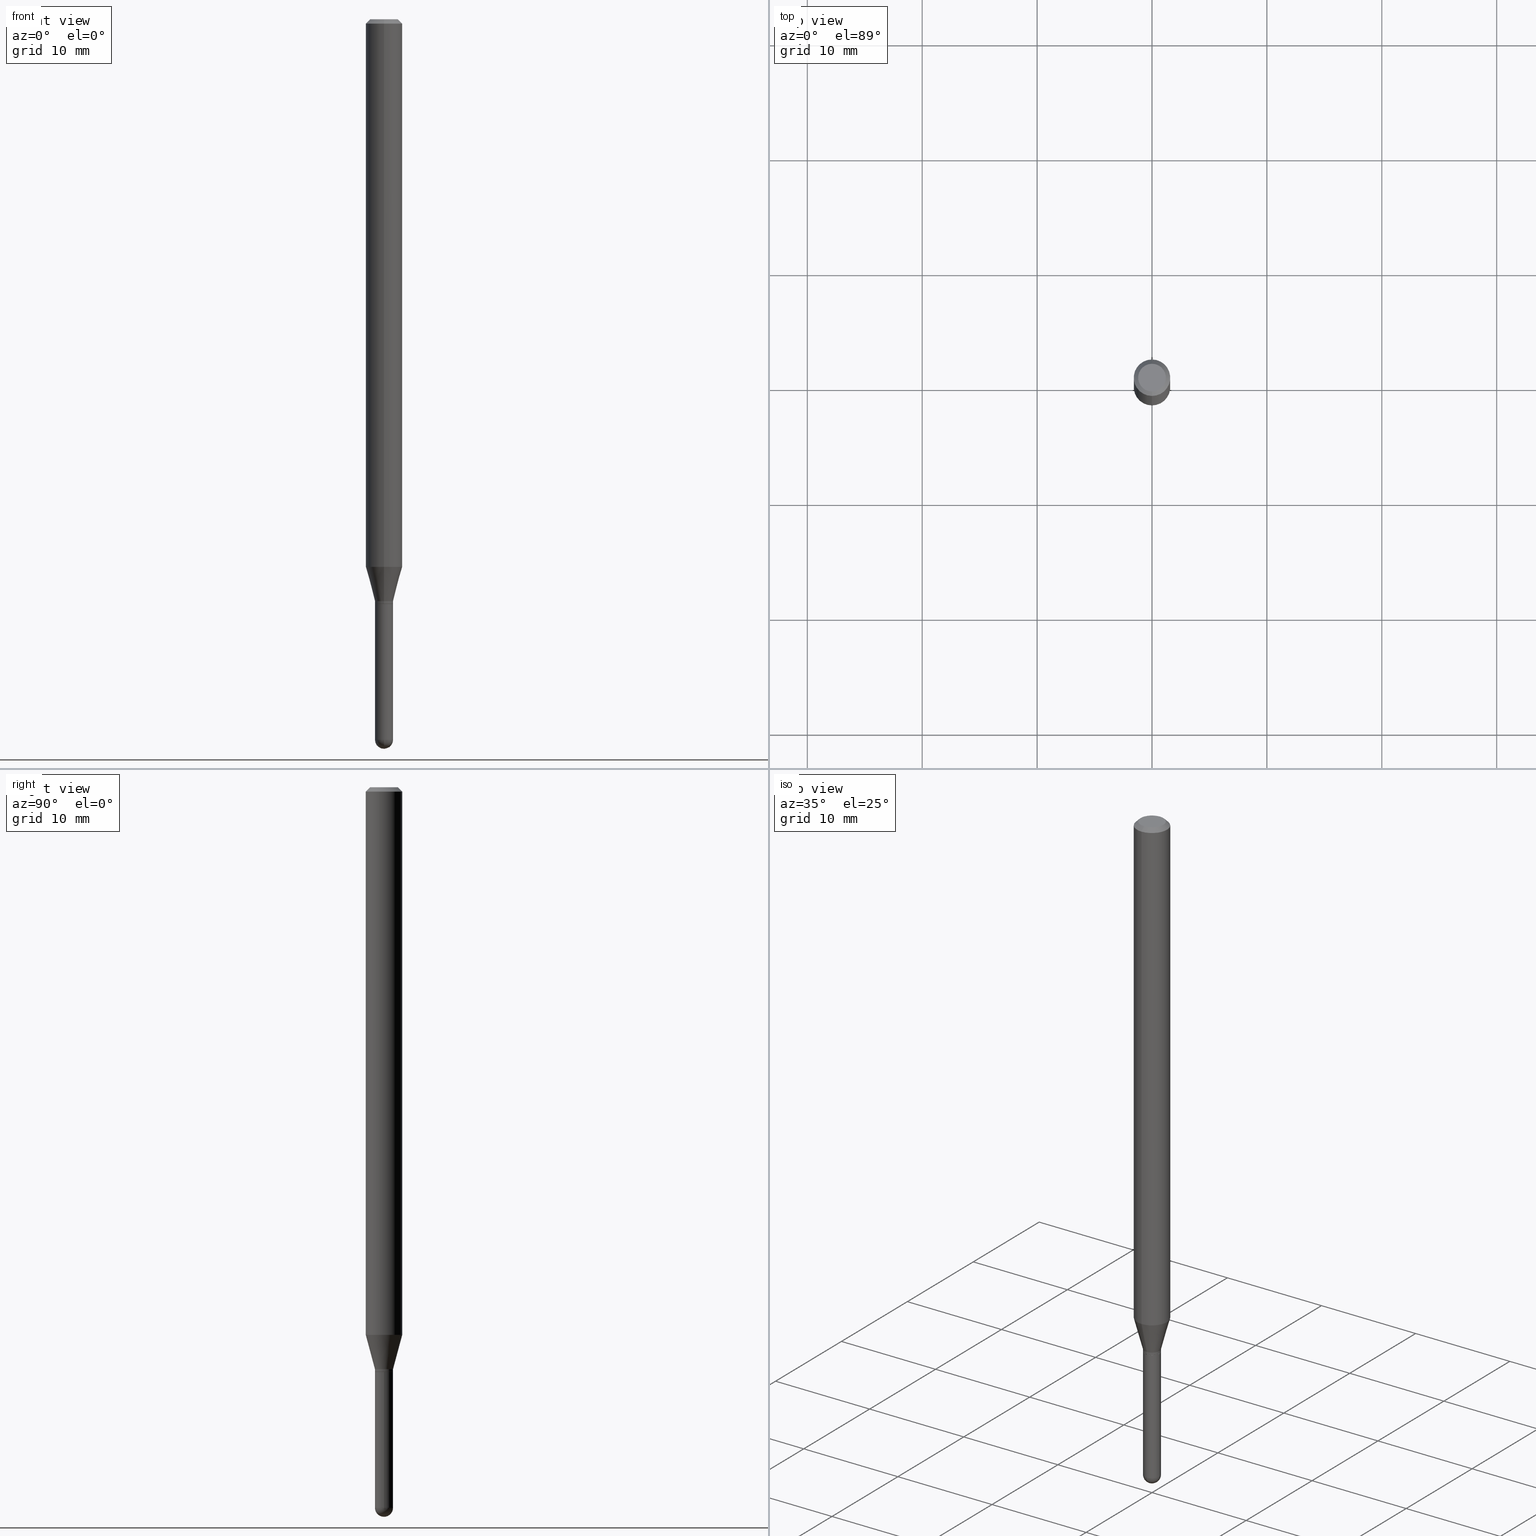
[diagram: canonical four-view strip — front | top / right | iso, engineering-drawing reading convention]
A machine part, canonical four-view strip (front | top / right | iso — engineering-drawing reading convention). The complete STEP part file that produces these views, byte-faithful:
ISO-10303-21;
HEADER;
FILE_DESCRIPTION (( 'STEP AP203' ),
    '1' );
FILE_NAME ('00992.STEP',
    '2024-03-07T19:33:10',
    ( '' ),
    ( '' ),
    'SwSTEP 2.0',
    'SolidWorks 2023',
    '' );
FILE_SCHEMA (( 'CONFIG_CONTROL_DESIGN' ));
ENDSEC;

DATA;
#1 = ORIENTED_EDGE ( 'NONE', *, *, #128, .T. ) ;
#2 =( CONVERSION_BASED_UNIT ( 'INCH', #219 ) LENGTH_UNIT ( ) NAMED_UNIT ( #489 ) );
#3 = EDGE_LOOP ( 'NONE', ( #116, #1, #270, #360 ) ) ;
#4 = FACE_OUTER_BOUND ( 'NONE', #266, .T. ) ;
#5 = DIRECTION ( 'NONE',  ( 1.000000000000000000, 0.000000000000000000, 0.000000000000000000 ) ) ;
#6 = ADVANCED_FACE ( 'NONE', ( #4 ), #442, .F. ) ;
#7 = DIRECTION ( 'NONE',  ( 2.445452099144444598E-29, -3.491505264276321759E-15, -1.000000000000000000 ) ) ;
#8 = CIRCLE ( 'NONE', #123, 0.03049999999999999586 ) ;
#9 = FACE_OUTER_BOUND ( 'NONE', #225, .T. ) ;
#10 = EDGE_CURVE ( 'NONE', #183, #323, #318, .T. ) ;
#11 = CARTESIAN_POINT ( 'NONE',  ( -2.164718430082235482E-16, -0.03100000000000675132, -2.003500000000000281 ) ) ;
#12 = DIRECTION ( 'NONE',  ( 2.445452099144444878E-29, -3.491505264276321759E-15, -1.000000000000000000 ) ) ;
#13 = ORIENTED_EDGE ( 'NONE', *, *, #10, .F. ) ;
#14 = DIRECTION ( 'NONE',  ( 1.000000000000000000, -6.982962677686270655E-15, 0.000000000000000000 ) ) ;
#15 = CONICAL_SURFACE ( 'NONE', #201, 0.03049999999999999586, 0.7853981633969275844 ) ;
#16 = CARTESIAN_POINT ( 'NONE',  ( 4.588745114027310997E-29, -6.551601533170026428E-15, -1.876440399561581485 ) ) ;
#17 = CARTESIAN_POINT ( 'NONE',  ( 2.202682480856767853E-16, 0.03099999999999254741, -2.003500000000000281 ) ) ;
#18 = APPROVAL ( #501, 'UNSPECIFIED' ) ;
#19 = CARTESIAN_POINT ( 'NONE',  ( 2.184918912462781357E-16, 0.03049999999999300146, -2.004000000000000448 ) ) ;
#20 = APPROVAL_ROLE ( '' ) ;
#21 = ORIENTED_EDGE ( 'NONE', *, *, #35, .T. ) ;
#22 = FACE_OUTER_BOUND ( 'NONE', #455, .T. ) ;
#23 = VECTOR ( 'NONE', #354, 39.37007874015748143 ) ;
#24 = DIRECTION ( 'NONE',  ( -2.445452099144444878E-29, 3.491505264276321759E-15, 1.000000000000000000 ) ) ;
#25 = DIRECTION ( 'NONE',  ( 1.000000000000000000, -6.982962677686266711E-15, 4.876176775795935232E-29 ) ) ;
#26 = PLANE ( 'NONE',  #378 ) ;
#27 = DIRECTION ( 'NONE',  ( -6.982962677686265922E-15, -1.000000000000000000, 3.491505264276321364E-15 ) ) ;
#28 = ORIENTED_EDGE ( 'NONE', *, *, #205, .T. ) ;
#29 = COORDINATED_UNIVERSAL_TIME_OFFSET ( 5, 0, .BEHIND. ) ;
#30 = CONICAL_SURFACE ( 'NONE', #162, 0.06250000000000000000, 0.7853981633974483900 ) ;
#31 = CARTESIAN_POINT ( 'NONE',  ( 0.03099999999999999978, -7.213400446049938314E-15, -2.004000000000000448 ) ) ;
#32 = ORGANIZATION ( 'UNSPECIFIED', 'UNSPECIFIED', '' ) ;
#33 = ORIENTED_EDGE ( 'NONE', *, *, #125, .T. ) ;
#34 = VERTEX_POINT ( 'NONE', #81 ) ;
#35 = EDGE_CURVE ( 'NONE', #38, #274, #450, .T. ) ;
#36 = VERTEX_POINT ( 'NONE', #31 ) ;
#37 = PRODUCT_DEFINITION_SHAPE ( 'NONE', 'NONE',  #108 ) ;
#38 = VERTEX_POINT ( 'NONE', #504 ) ;
#39 = AXIS2_PLACEMENT_3D ( 'NONE', #309, #241, #107 ) ;
#40 = CARTESIAN_POINT ( 'NONE',  ( 2.167155344068795106E-16, 0.03049999999999300146, -2.004000000000000448 ) ) ;
#41 = ORIENTED_EDGE ( 'NONE', *, *, #454, .T. ) ;
#42 = ADVANCED_FACE ( 'NONE', ( #79 ), #392, .T. ) ;
#43 = DIRECTION ( 'NONE',  ( -2.445468806185136597E-29, 3.491481338843145583E-15, 1.000000000000000000 ) ) ;
#44 = DIRECTION ( 'NONE',  ( -6.982962677686265922E-15, -1.000000000000000000, 0.000000000000000000 ) ) ;
#45 = FACE_OUTER_BOUND ( 'NONE', #349, .T. ) ;
#46 = AXIS2_PLACEMENT_3D ( 'NONE', #84, #322, #44 ) ;
#47 = AXIS2_PLACEMENT_3D ( 'NONE', #331, #210, #487 ) ;
#48 = CARTESIAN_POINT ( 'NONE',  ( -4.287811248607203282E-16, -0.06250000000000005551, -0.01499999999999979128 ) ) ;
#49 = EDGE_CURVE ( 'NONE', #36, #34, #271, .T. ) ;
#50 = DIRECTION ( 'NONE',  ( -2.445452099144444878E-29, 3.491505264276321759E-15, 1.000000000000000000 ) ) ;
#51 = CARTESIAN_POINT ( 'NONE',  ( 0.000000000000000000, 0.000000000000000000, 0.000000000000000000 ) ) ;
#52 = VECTOR ( 'NONE', #448, 39.37007874015748143 ) ;
#53 = DIRECTION ( 'NONE',  ( -2.445468806185136597E-29, 3.491481338843145583E-15, 1.000000000000000000 ) ) ;
#54 = CIRCLE ( 'NONE', #47, 0.06250000000000000000 ) ;
#55 = FACE_OUTER_BOUND ( 'NONE', #89, .T. ) ;
#56 = DATE_TIME_ROLE ( 'creation_date' ) ;
#57 = CARTESIAN_POINT ( 'NONE',  ( 2.166470799114680355E-46, -3.093188454869440912E-32, -8.859183133755235705E-18 ) ) ;
#58 = EDGE_CURVE ( 'NONE', #323, #397, #161, .T. ) ;
#59 = CARTESIAN_POINT ( 'NONE',  ( 2.202682480856811734E-16, 0.03099999999999323436, -1.993999999999999995 ) ) ;
#60 = ORIENTED_EDGE ( 'NONE', *, *, #328, .F. ) ;
#61 = DIRECTION ( 'NONE',  ( -2.445468806185136597E-29, 3.491481338843145583E-15, 1.000000000000000000 ) ) ;
#62 = CARTESIAN_POINT ( 'NONE',  ( -2.129803616693820695E-16, -0.03050000000000699374, -2.004000000000000448 ) ) ;
#63 = PERSON_AND_ORGANIZATION ( #446, #32 ) ;
#64 = CARTESIAN_POINT ( 'NONE',  ( 4.900686006685469063E-29, -6.996976549609750691E-15, -2.004000000000000448 ) ) ;
#65 = AXIS2_PLACEMENT_3D ( 'NONE', #375, #260, #90 ) ;
#66 = CARTESIAN_POINT ( 'NONE',  ( 2.166470799114680355E-46, -3.093188454869440912E-32, -8.859183133755235705E-18 ) ) ;
#67 =( GEOMETRIC_REPRESENTATION_CONTEXT ( 3 ) GLOBAL_UNCERTAINTY_ASSIGNED_CONTEXT ( ( #437 ) ) GLOBAL_UNIT_ASSIGNED_CONTEXT ( ( #2, #150, #398 ) ) REPRESENTATION_CONTEXT ( 'NONE', 'WORKASPACE' ) );
#68 = EDGE_CURVE ( 'NONE', #388, #114, #394, .T. ) ;
#69 = VERTEX_POINT ( 'NONE', #198 ) ;
#70 = PERSON_AND_ORGANIZATION ( #446, #32 ) ;
#71 = DIRECTION ( 'NONE',  ( 1.000000000000000000, -6.982962677686270655E-15, 0.000000000000000000 ) ) ;
#72 = ORIENTED_EDGE ( 'NONE', *, *, #302, .T. ) ;
#73 = ADVANCED_FACE ( 'NONE', ( #332 ), #366, .T. ) ;
#74 = VECTOR ( 'NONE', #283, 39.37007874015748143 ) ;
#75 = CARTESIAN_POINT ( 'NONE',  ( 4.900719487595014484E-29, -6.996928603041664772E-15, -2.004000000000000448 ) ) ;
#76 = EDGE_LOOP ( 'NONE', ( #276, #435, #234, #194 ) ) ;
#77 = ORIENTED_EDGE ( 'NONE', *, *, #265, .T. ) ;
#78 = VERTEX_POINT ( 'NONE', #453 ) ;
#79 = FACE_OUTER_BOUND ( 'NONE', #350, .T. ) ;
#80 = AXIS2_PLACEMENT_3D ( 'NONE', #403, #158, #124 ) ;
#81 = CARTESIAN_POINT ( 'NONE',  ( -0.03099999999999999978, -7.588429766237065021E-15, -2.004000000000000448 ) ) ;
#82 = ADVANCED_FACE ( 'NONE', ( #365 ), #305, .T. ) ;
#83 = LINE ( 'NONE', #129, #451 ) ;
#84 = CARTESIAN_POINT ( 'NONE',  ( 4.899463280635897000E-29, -6.995230796977611703E-15, -2.003500000000000281 ) ) ;
#85 = ADVANCED_FACE ( 'NONE', ( #9 ), #207, .F. ) ;
#86 = CIRCLE ( 'NONE', #433, 0.03099999999999999978 ) ;
#87 = CARTESIAN_POINT ( 'NONE',  ( 0.000000000000000000, 0.000000000000000000, 0.000000000000000000 ) ) ;
#88 = CARTESIAN_POINT ( 'NONE',  ( 3.321787289678948580E-16, 0.03099999999999323436, -1.993999999999999995 ) ) ;
#89 = EDGE_LOOP ( 'NONE', ( #287, #60 ) ) ;
#90 = DIRECTION ( 'NONE',  ( -6.982962677686265922E-15, -1.000000000000000000, 0.000000000000000000 ) ) ;
#91 = DIRECTION ( 'NONE',  ( -6.982962677686265922E-15, -1.000000000000000000, 0.000000000000000000 ) ) ;
#92 = ADVANCED_FACE ( 'NONE', ( #45 ), #367, .T. ) ;
#93 = CLOSED_SHELL ( 'NONE', ( #494, #42, #6, #337, #508 ) ) ;
#94 = CARTESIAN_POINT ( 'NONE',  ( 6.037862482471103495E-29, -8.620467425603728566E-15, -2.469000000000000306 ) ) ;
#95 = VECTOR ( 'NONE', #252, 39.37007874015748143 ) ;
#96 = CYLINDRICAL_SURFACE ( 'NONE', #218, 0.06250000000000000000 ) ;
#97 = PERSON_AND_ORGANIZATION_ROLE ( 'creator' ) ;
#98 = APPROVAL ( #355, 'UNSPECIFIED' ) ;
#99 = DIRECTION ( 'NONE',  ( -6.982962677686265922E-15, -1.000000000000000000, 3.491505264276321364E-15 ) ) ;
#100 = ADVANCED_FACE ( 'NONE', ( #325 ), #345, .T. ) ;
#101 = CARTESIAN_POINT ( 'NONE',  ( 6.035211466974647334E-29, -8.624263830681084699E-15, -2.469000000000000306 ) ) ;
#102 = DATE_AND_TIME ( #174, #245 ) ;
#103 = AXIS2_PLACEMENT_3D ( 'NONE', #57, #169, #164 ) ;
#104 = CARTESIAN_POINT ( 'NONE',  ( 3.668178148716669734E-31, -5.237257896414485818E-17, -0.01500000000000000812 ) ) ;
#105 = DATE_AND_TIME ( #343, #202 ) ;
#106 = APPLICATION_CONTEXT ( 'configuration controlled 3d designs of mechanical parts and assemblies' ) ;
#107 = DIRECTION ( 'NONE',  ( -1.000000000000000000, 6.982962677686265922E-15, -4.876176775795935793E-29 ) ) ;
#108 = PRODUCT_DEFINITION ( 'UNKNOWN', '', #415, #431 ) ;
#109 = FACE_OUTER_BOUND ( 'NONE', #144, .T. ) ;
#110 = DIRECTION ( 'NONE',  ( 6.982962677686265922E-15, 1.000000000000000000, 0.000000000000000000 ) ) ;
#111 = DIRECTION ( 'NONE',  ( -2.445468806185136597E-29, 3.491481338843145583E-15, 1.000000000000000000 ) ) ;
#112 = DATE_TIME_ROLE ( 'classification_date' ) ;
#113 = CIRCLE ( 'NONE', #244, 0.06250000000000000000 ) ;
#114 = VERTEX_POINT ( 'NONE', #200 ) ;
#115 = CC_DESIGN_APPROVAL ( #18, ( #108 ) ) ;
#116 = ORIENTED_EDGE ( 'NONE', *, *, #460, .F. ) ;
#117 = EDGE_LOOP ( 'NONE', ( #467, #33, #380, #479 ) ) ;
#118 = EDGE_CURVE ( 'NONE', #190, #34, #204, .T. ) ;
#119 = EDGE_LOOP ( 'NONE', ( #310, #21, #195, #428 ) ) ;
#120 = ORIENTED_EDGE ( 'NONE', *, *, #248, .F. ) ;
#121 = CARTESIAN_POINT ( 'NONE',  ( 6.037862482471103495E-29, -8.620467425603728566E-15, -2.469000000000000306 ) ) ;
#122 = CARTESIAN_POINT ( 'NONE',  ( -0.03099999999999999978, 2.202682480856310560E-16, -1.524869877979020612E-30 ) ) ;
#123 = AXIS2_PLACEMENT_3D ( 'NONE', #223, #188, #484 ) ;
#124 = DIRECTION ( 'NONE',  ( -6.982962677686266711E-15, -1.000000000000000000, 0.000000000000000000 ) ) ;
#125 = EDGE_CURVE ( 'NONE', #323, #472, #363, .T. ) ;
#126 = CARTESIAN_POINT ( 'NONE',  ( 2.202682480856304644E-16, 0.03099999999999992345, -1.082366631925657087E-16 ) ) ;
#127 = CARTESIAN_POINT ( 'NONE',  ( 6.035211466974647334E-29, -8.624263830681084699E-15, -2.469000000000000306 ) ) ;
#128 = EDGE_CURVE ( 'NONE', #303, #69, #157, .T. ) ;
#129 = CARTESIAN_POINT ( 'NONE',  ( -4.364351673553916201E-16, -0.06250000000000000000, 2.182190790172700853E-16 ) ) ;
#130 = PERSON_AND_ORGANIZATION ( #446, #32 ) ;
#131 = ADVANCED_FACE ( 'NONE', ( #452 ), #449, .T. ) ;
#132 = DIRECTION ( 'NONE',  ( -6.982962677686265922E-15, -1.000000000000000000, 3.483106191921935554E-15 ) ) ;
#133 = COORDINATED_UNIVERSAL_TIME_OFFSET ( 5, 0, .BEHIND. ) ;
#134 = PRODUCT_RELATED_PRODUCT_CATEGORY ( 'detail', '', ( #186 ) ) ;
#135 = ORIENTED_EDGE ( 'NONE', *, *, #328, .T. ) ;
#136 = LINE ( 'NONE', #304, #179 ) ;
#137 = AXIS2_PLACEMENT_3D ( 'NONE', #362, #7, #400 ) ;
#138 = AXIS2_PLACEMENT_3D ( 'NONE', #235, #267, #430 ) ;
#139 = DATE_AND_TIME ( #178, #298 ) ;
#140 = EDGE_CURVE ( 'NONE', #38, #334, #372, .T. ) ;
#141 = ORIENTED_EDGE ( 'NONE', *, *, #417, .F. ) ;
#142 = ORIENTED_EDGE ( 'NONE', *, *, #68, .F. ) ;
#143 = ORIENTED_EDGE ( 'NONE', *, *, #58, .F. ) ;
#144 = EDGE_LOOP ( 'NONE', ( #314, #72, #475, #427, #187 ) ) ;
#145 = AXIS2_PLACEMENT_3D ( 'NONE', #75, #236, #160 ) ;
#146 = CIRCLE ( 'NONE', #495, 0.03099999999999999978 ) ;
#147 = EDGE_CURVE ( 'NONE', #274, #38, #395, .T. ) ;
#148 = CARTESIAN_POINT ( 'NONE',  ( 6.037862482471103495E-29, -8.620467425603728566E-15, -2.469000000000000306 ) ) ;
#149 = ORIENTED_EDGE ( 'NONE', *, *, #35, .F. ) ;
#150 =( NAMED_UNIT ( * ) PLANE_ANGLE_UNIT ( ) SI_UNIT ( $, .RADIAN. ) );
#151 = CC_DESIGN_DATE_AND_TIME_ASSIGNMENT ( #139, #112, ( #481 ) ) ;
#152 = CARTESIAN_POINT ( 'NONE',  ( -3.773273898774340269E-16, -0.04749999999999999362, 1.569873169193700268E-16 ) ) ;
#153 = ORIENTED_EDGE ( 'NONE', *, *, #233, .F. ) ;
#154 = CARTESIAN_POINT ( 'NONE',  ( 3.668178148716669734E-31, -5.237257896414485818E-17, -0.01500000000000000812 ) ) ;
#155 = ADVANCED_FACE ( 'NONE', ( #220 ), #96, .T. ) ;
#156 = AXIS2_PLACEMENT_3D ( 'NONE', #275, #386, #184 ) ;
#157 = LINE ( 'NONE', #48, #228 ) ;
#158 = DIRECTION ( 'NONE',  ( -2.445452099144444878E-29, 3.491505264276321759E-15, 1.000000000000000000 ) ) ;
#159 = DIRECTION ( 'NONE',  ( -6.982962677686265922E-15, -1.000000000000000000, 0.000000000000000000 ) ) ;
#160 = DIRECTION ( 'NONE',  ( 1.000000000000000000, -6.982962677686270655E-15, 0.000000000000000000 ) ) ;
#161 = CIRCLE ( 'NONE', #46, 0.03099999999999964936 ) ;
#162 = AXIS2_PLACEMENT_3D ( 'NONE', #170, #299, #167 ) ;
#163 = APPROVAL_PERSON_ORGANIZATION ( #63, #18, #20 ) ;
#164 = DIRECTION ( 'NONE',  ( -6.982962677686266711E-15, -1.000000000000000000, 3.491505264276321759E-15 ) ) ;
#165 = ADVANCED_FACE ( 'NONE', ( #418 ), #30, .T. ) ;
#166 = DIRECTION ( 'NONE',  ( -2.445452099144444598E-29, 3.491505264276321759E-15, 1.000000000000000000 ) ) ;
#167 = DIRECTION ( 'NONE',  ( 6.982962677686265922E-15, 1.000000000000000000, -3.483106191921935554E-15 ) ) ;
#168 = COORDINATED_UNIVERSAL_TIME_OFFSET ( 5, 0, .BEHIND. ) ;
#169 = DIRECTION ( 'NONE',  ( -2.445452099144444878E-29, 3.491505264276321759E-15, 1.000000000000000000 ) ) ;
#170 = CARTESIAN_POINT ( 'NONE',  ( 3.668178148716669734E-31, -5.237257896414485818E-17, -0.01500000000000000812 ) ) ;
#171 = EDGE_LOOP ( 'NONE', ( #384, #383, #505, #499 ) ) ;
#172 = AXIS2_PLACEMENT_3D ( 'NONE', #87, #486, #247 ) ;
#173 = CARTESIAN_POINT ( 'NONE',  ( -0.03099999999999999978, -7.588429766237065021E-15, -2.469000000000000306 ) ) ;
#174 = CALENDAR_DATE ( 2024, 7, 3 ) ;
#175 = DIRECTION ( 'NONE',  ( -2.445452099144444878E-29, 3.491505264276321759E-15, 1.000000000000000000 ) ) ;
#176 = ORIENTED_EDGE ( 'NONE', *, *, #313, .F. ) ;
#177 = CARTESIAN_POINT ( 'NONE',  ( 4.440892098501086659E-16, 0.06249999999999995143, -0.01500000000000022669 ) ) ;
#178 = CALENDAR_DATE ( 2024, 7, 3 ) ;
#179 = VECTOR ( 'NONE', #463, 39.37007874015749564 ) ;
#180 = EDGE_CURVE ( 'NONE', #397, #323, #458, .T. ) ;
#181 = LOCAL_TIME ( 14, 33, 10.00000000000000000, #420 ) ;
#182 = ORIENTED_EDGE ( 'NONE', *, *, #490, .F. ) ;
#183 = VERTEX_POINT ( 'NONE', #19 ) ;
#184 = DIRECTION ( 'NONE',  ( 6.982962677686265922E-15, 1.000000000000000000, 0.000000000000000000 ) ) ;
#185 = ORIENTED_EDGE ( 'NONE', *, *, #393, .T. ) ;
#186 = PRODUCT ( '00992', '00992', '', ( #443 ) ) ;
#187 = ORIENTED_EDGE ( 'NONE', *, *, #341, .F. ) ;
#188 = DIRECTION ( 'NONE',  ( -2.445452099144444878E-29, 3.491505264276321759E-15, 1.000000000000000000 ) ) ;
#189 = DIRECTION ( 'NONE',  ( 6.982962677686265922E-15, 1.000000000000000000, 0.000000000000000000 ) ) ;
#190 = VERTEX_POINT ( 'NONE', #173 ) ;
#191 = EDGE_CURVE ( 'NONE', #334, #69, #113, .T. ) ;
#192 = PERSON_AND_ORGANIZATION ( #446, #32 ) ;
#193 = AXIS2_PLACEMENT_3D ( 'NONE', #148, #319, #441 ) ;
#194 = ORIENTED_EDGE ( 'NONE', *, *, #265, .F. ) ;
#195 = ORIENTED_EDGE ( 'NONE', *, *, #417, .T. ) ;
#196 = CARTESIAN_POINT ( 'NONE',  ( 0.000000000000000000, 0.000000000000000000, 0.000000000000000000 ) ) ;
#197 = ORIENTED_EDGE ( 'NONE', *, *, #242, .F. ) ;
#198 = CARTESIAN_POINT ( 'NONE',  ( -4.364351673553912750E-16, -0.06250000000000005551, -0.01499999999999979128 ) ) ;
#199 = CLOSED_SHELL ( 'NONE', ( #131, #466, #165, #222, #100, #82, #155, #92, #85, #321, #474, #73 ) ) ;
#200 = CARTESIAN_POINT ( 'NONE',  ( 0.03099999999999999978, -8.025169857330971394E-15, -2.469000000000000306 ) ) ;
#201 = AXIS2_PLACEMENT_3D ( 'NONE', #64, #217, #159 ) ;
#202 = LOCAL_TIME ( 14, 33, 10.00000000000000000, #133 ) ;
#203 = DIRECTION ( 'NONE',  ( -2.445452099144444878E-29, 3.491505264276321759E-15, 1.000000000000000000 ) ) ;
#204 = LINE ( 'NONE', #122, #52 ) ;
#205 = EDGE_CURVE ( 'NONE', #397, #425, #264, .T. ) ;
#206 = CARTESIAN_POINT ( 'NONE',  ( -2.164718430082268516E-16, -0.03100000000000715725, -1.993999999999999995 ) ) ;
#207 = PLANE ( 'NONE',  #137 ) ;
#208 = CIRCLE ( 'NONE', #488, 0.03100000000000019407 ) ;
#209 = CC_DESIGN_SECURITY_CLASSIFICATION ( #481, ( #415 ) ) ;
#210 = DIRECTION ( 'NONE',  ( -2.445452099144444878E-29, 3.491505264276321759E-15, 1.000000000000000000 ) ) ;
#211 = DIRECTION ( 'NONE',  ( -6.982962677686265922E-15, -1.000000000000000000, 3.491505264276321759E-15 ) ) ;
#212 = EDGE_CURVE ( 'NONE', #472, #38, #379, .T. ) ;
#213 = DIRECTION ( 'NONE',  ( 1.839019923739599526E-15, 0.2588190451025248473, 0.9659258262890670910 ) ) ;
#214 = DIRECTION ( 'NONE',  ( -2.445452099144444878E-29, 3.491505264276321759E-15, 1.000000000000000000 ) ) ;
#215 = APPROVAL_DATE_TIME ( #102, #18 ) ;
#216 = AXIS2_PLACEMENT_3D ( 'NONE', #94, #61, #14 ) ;
#217 = DIRECTION ( 'NONE',  ( -2.445452099144444878E-29, 3.491505264276321759E-15, 1.000000000000000000 ) ) ;
#218 = AXIS2_PLACEMENT_3D ( 'NONE', #414, #175, #99 ) ;
#219 = LENGTH_MEASURE_WITH_UNIT ( LENGTH_MEASURE( 0.02539999999999999897 ), #424 );
#220 = FACE_OUTER_BOUND ( 'NONE', #119, .T. ) ;
#221 = SECURITY_CLASSIFICATION_LEVEL ( 'unclassified' ) ;
#222 = ADVANCED_FACE ( 'NONE', ( #374 ), #338, .T. ) ;
#223 = CARTESIAN_POINT ( 'NONE',  ( 4.900686006685469063E-29, -6.996976549609750691E-15, -2.004000000000000448 ) ) ;
#224 = ORIENTED_EDGE ( 'NONE', *, *, #242, .T. ) ;
#225 = EDGE_LOOP ( 'NONE', ( #281, #352 ) ) ;
#226 = DIRECTION ( 'NONE',  ( -2.445468806185136597E-29, 3.491481338843145583E-15, 1.000000000000000000 ) ) ;
#227 = SPHERICAL_SURFACE ( 'NONE', #156, 0.03099999999999987835 ) ;
#228 = VECTOR ( 'NONE', #406, 39.37007874015748143 ) ;
#229 = CC_DESIGN_APPROVAL ( #348, ( #415 ) ) ;
#230 = ORIENTED_EDGE ( 'NONE', *, *, #118, .T. ) ;
#231 = VERTEX_POINT ( 'NONE', #62 ) ;
#232 = CARTESIAN_POINT ( 'NONE',  ( 4.364351673553919652E-16, 0.06249999999999995143, -0.01500000000000022669 ) ) ;
#233 = EDGE_CURVE ( 'NONE', #114, #36, #340, .T. ) ;
#234 = ORIENTED_EDGE ( 'NONE', *, *, #147, .F. ) ;
#235 = CARTESIAN_POINT ( 'NONE',  ( 4.900686006685469063E-29, -6.996976549609750691E-15, -2.004000000000000448 ) ) ;
#236 = DIRECTION ( 'NONE',  ( -2.445468806185136597E-29, 3.491481338843145583E-15, 1.000000000000000000 ) ) ;
#237 = VERTEX_POINT ( 'NONE', #335 ) ;
#238 = CARTESIAN_POINT ( 'NONE',  ( -2.129803616693820695E-16, -0.03050000000000699374, -2.004000000000000448 ) ) ;
#239 = AXIS2_PLACEMENT_3D ( 'NONE', #51, #243, #291 ) ;
#240 = AXIS2_PLACEMENT_3D ( 'NONE', #410, #53, #370 ) ;
#241 = DIRECTION ( 'NONE',  ( 2.438088387897960049E-29, -3.491481338843145188E-15, -1.000000000000000000 ) ) ;
#242 = EDGE_CURVE ( 'NONE', #78, #388, #324, .T. ) ;
#243 = DIRECTION ( 'NONE',  ( -2.445452099144444878E-29, 3.491505264276321759E-15, 1.000000000000000000 ) ) ;
#244 = AXIS2_PLACEMENT_3D ( 'NONE', #104, #256, #132 ) ;
#245 = LOCAL_TIME ( 14, 33, 10.00000000000000000, #168 ) ;
#246 = CARTESIAN_POINT ( 'NONE',  ( -2.202682480855702151E-16, -0.03100000000000856237, -2.469000000000000306 ) ) ;
#247 = DIRECTION ( 'NONE',  ( -6.982962677686265922E-15, -1.000000000000000000, 3.491505264276321759E-15 ) ) ;
#248 = EDGE_CURVE ( 'NONE', #237, #303, #473, .T. ) ;
#249 = DIRECTION ( 'NONE',  ( -2.445468806185136597E-29, 3.491481338843145583E-15, 1.000000000000000000 ) ) ;
#250 = EDGE_LOOP ( 'NONE', ( #356, #432, #28, #320 ) ) ;
#251 = CYLINDRICAL_SURFACE ( 'NONE', #240, 0.03099999999999999978 ) ;
#252 = DIRECTION ( 'NONE',  ( -2.445452099144444878E-29, 3.491505264276321759E-15, 1.000000000000000000 ) ) ;
#253 = VECTOR ( 'NONE', #330, 39.37007874015748143 ) ;
#254 = VECTOR ( 'NONE', #462, 39.37007874015748143 ) ;
#255 = CC_DESIGN_PERSON_AND_ORGANIZATION_ASSIGNMENT ( #493, #257, ( #108 ) ) ;
#256 = DIRECTION ( 'NONE',  ( -2.445452099144444878E-29, 3.491505264276321759E-15, 1.000000000000000000 ) ) ;
#257 = PERSON_AND_ORGANIZATION_ROLE ( 'creator' ) ;
#258 = CC_DESIGN_PERSON_AND_ORGANIZATION_ASSIGNMENT ( #70, #381, ( #481 ) ) ;
#259 = DIRECTION ( 'NONE',  ( -2.445452099144444878E-29, 3.491505264276321759E-15, 1.000000000000000000 ) ) ;
#260 = DIRECTION ( 'NONE',  ( -2.445452099144444878E-29, 3.491505264276321759E-15, 1.000000000000000000 ) ) ;
#261 = DIRECTION ( 'NONE',  ( -1.000000000000000000, 7.105427357601001070E-15, -4.926315508542082329E-29 ) ) ;
#262 = CIRCLE ( 'NONE', #285, 0.03099999999999987835 ) ;
#263 = EDGE_LOOP ( 'NONE', ( #41, #230, #389, #153, #353 ) ) ;
#264 = LINE ( 'NONE', #300, #385 ) ;
#265 = EDGE_CURVE ( 'NONE', #425, #274, #136, .T. ) ;
#266 = EDGE_LOOP ( 'NONE', ( #387, #436 ) ) ;
#267 = DIRECTION ( 'NONE',  ( -2.445452099144444878E-29, 3.491505264276321759E-15, 1.000000000000000000 ) ) ;
#268 = EDGE_LOOP ( 'NONE', ( #197, #444, #176, #142 ) ) ;
#269 = ORIENTED_EDGE ( 'NONE', *, *, #191, .T. ) ;
#270 = ORIENTED_EDGE ( 'NONE', *, *, #490, .T. ) ;
#271 = CIRCLE ( 'NONE', #145, 0.03099999999999999978 ) ;
#272 = EDGE_CURVE ( 'NONE', #78, #351, #262, .T. ) ;
#273 = AXIS2_PLACEMENT_3D ( 'NONE', #496, #259, #27 ) ;
#274 = VERTEX_POINT ( 'NONE', #470 ) ;
#275 = CARTESIAN_POINT ( 'NONE',  ( 6.035211466974647334E-29, -8.624263830681084699E-15, -2.469000000000000306 ) ) ;
#276 = ORIENTED_EDGE ( 'NONE', *, *, #371, .T. ) ;
#277 = DIRECTION ( 'NONE',  ( -6.982962677686265922E-15, -1.000000000000000000, 4.370956789862821150E-15 ) ) ;
#278 = ORIENTED_EDGE ( 'NONE', *, *, #454, .F. ) ;
#279 = DIRECTION ( 'NONE',  ( -6.982962677686266711E-15, -1.000000000000000000, 0.000000000000000000 ) ) ;
#280 = MANIFOLD_SOLID_BREP ( 'Body-Move/Copy2[2]', #199 ) ;
#281 = ORIENTED_EDGE ( 'NONE', *, *, #248, .T. ) ;
#282 = EDGE_LOOP ( 'NONE', ( #423, #185, #77, #149 ) ) ;
#283 = DIRECTION ( 'NONE',  ( -4.937700262161976356E-15, -0.7071067811861768693, 0.7071067811869181652 ) ) ;
#284 = VECTOR ( 'NONE', #510, 39.37007874015748143 ) ;
#285 = AXIS2_PLACEMENT_3D ( 'NONE', #127, #434, #189 ) ;
#286 = EDGE_CURVE ( 'NONE', #237, #334, #382, .T. ) ;
#287 = ORIENTED_EDGE ( 'NONE', *, *, #364, .F. ) ;
#288 = DIRECTION ( 'NONE',  ( -6.982962677686266711E-15, -1.000000000000000000, 0.000000000000000000 ) ) ;
#289 = CC_DESIGN_PERSON_AND_ORGANIZATION_ASSIGNMENT ( #130, #97, ( #415 ) ) ;
#290 = CIRCLE ( 'NONE', #138, 0.03049999999999999586 ) ;
#291 = DIRECTION ( 'NONE',  ( -6.982962677686265922E-15, -1.000000000000000000, 3.491505264276321759E-15 ) ) ;
#292 = APPROVAL_PERSON_ORGANIZATION ( #192, #98, #438 ) ;
#293 = FACE_OUTER_BOUND ( 'NONE', #171, .T. ) ;
#294 = CARTESIAN_POINT ( 'NONE',  ( 4.440892098500625669E-16, 0.06250000000000000000, -2.182190790172700853E-16 ) ) ;
#295 = ORIENTED_EDGE ( 'NONE', *, *, #147, .T. ) ;
#296 = DATE_AND_TIME ( #464, #181 ) ;
#297 = CIRCLE ( 'NONE', #480, 0.03100000000000019407 ) ;
#298 = LOCAL_TIME ( 14, 33, 10.00000000000000000, #29 ) ;
#299 = DIRECTION ( 'NONE',  ( 2.445452099144444878E-29, -3.491505264276321759E-15, -1.000000000000000000 ) ) ;
#300 = CARTESIAN_POINT ( 'NONE',  ( -2.164718430082737148E-16, -0.03099999999999992345, 1.082366631925657087E-16 ) ) ;
#301 = CARTESIAN_POINT ( 'NONE',  ( 4.900686006685467942E-29, -6.996976549609749903E-15, -2.004000000000000448 ) ) ;
#302 = EDGE_CURVE ( 'NONE', #190, #388, #315, .T. ) ;
#303 = VERTEX_POINT ( 'NONE', #152 ) ;
#304 = CARTESIAN_POINT ( 'NONE',  ( -2.164718430082268516E-16, -0.03100000000000715725, -1.993999999999999995 ) ) ;
#305 = CONICAL_SURFACE ( 'NONE', #80, 0.03100000000000019407, 0.2617993877991501850 ) ;
#306 = CIRCLE ( 'NONE', #216, 0.03099999999999999978 ) ;
#307 = FACE_OUTER_BOUND ( 'NONE', #268, .T. ) ;
#308 = APPROVAL_DATE_TIME ( #105, #348 ) ;
#309 = CARTESIAN_POINT ( 'NONE',  ( 2.164718430083232405E-16, 0.03099999999999300190, -2.004000000000000448 ) ) ;
#310 = ORIENTED_EDGE ( 'NONE', *, *, #140, .F. ) ;
#311 = APPROVAL_DATE_TIME ( #357, #98 ) ;
#312 = CARTESIAN_POINT ( 'NONE',  ( 6.035211466974647334E-29, -8.624263830681084699E-15, -2.469000000000000306 ) ) ;
#313 = EDGE_CURVE ( 'NONE', #114, #351, #86, .T. ) ;
#314 = ORIENTED_EDGE ( 'NONE', *, *, #118, .F. ) ;
#315 = CIRCLE ( 'NONE', #193, 0.03099999999999999978 ) ;
#316 = EDGE_LOOP ( 'NONE', ( #295, #471, #182, #141 ) ) ;
#317 = SHAPE_DEFINITION_REPRESENTATION ( #37, #412 ) ;
#318 = LINE ( 'NONE', #40, #284 ) ;
#319 = DIRECTION ( 'NONE',  ( -2.445468806185136597E-29, 3.491481338843145583E-15, 1.000000000000000000 ) ) ;
#320 = ORIENTED_EDGE ( 'NONE', *, *, #393, .F. ) ;
#321 = ADVANCED_FACE ( 'NONE', ( #55 ), #26, .F. ) ;
#322 = DIRECTION ( 'NONE',  ( -2.445452099144444878E-29, 3.491505264276321759E-15, 1.000000000000000000 ) ) ;
#323 = VERTEX_POINT ( 'NONE', #17 ) ;
#324 = CIRCLE ( 'NONE', #401, 0.03099999999999987835 ) ;
#325 = FACE_OUTER_BOUND ( 'NONE', #76, .T. ) ;
#326 = CARTESIAN_POINT ( 'NONE',  ( 4.876231485694023880E-29, -6.962061496966986701E-15, -1.993999999999999995 ) ) ;
#327 = APPLICATION_PROTOCOL_DEFINITION ( 'international standard', 'config_control_design', 1994, #408 ) ;
#328 = EDGE_CURVE ( 'NONE', #183, #231, #290, .T. ) ;
#329 = CARTESIAN_POINT ( 'NONE',  ( 4.876231485694023880E-29, -6.962061496966986701E-15, -1.993999999999999995 ) ) ;
#330 = DIRECTION ( 'NONE',  ( -2.445452099144444878E-29, 3.491505264276321759E-15, 1.000000000000000000 ) ) ;
#331 = CARTESIAN_POINT ( 'NONE',  ( 3.668178148716669734E-31, -5.237257896414485818E-17, -0.01500000000000000812 ) ) ;
#332 = FACE_OUTER_BOUND ( 'NONE', #250, .T. ) ;
#333 = APPROVAL_PERSON_ORGANIZATION ( #377, #348, #373 ) ;
#334 = VERTEX_POINT ( 'NONE', #177 ) ;
#335 = CARTESIAN_POINT ( 'NONE',  ( 3.840629472727447874E-16, 0.04749999999999999362, -1.747056831868805136E-16 ) ) ;
#336 = DIRECTION ( 'NONE',  ( -2.445452099144444878E-29, 3.491505264276321759E-15, 1.000000000000000000 ) ) ;
#337 = ADVANCED_FACE ( 'NONE', ( #307 ), #227, .T. ) ;
#338 = CYLINDRICAL_SURFACE ( 'NONE', #273, 0.06250000000000000000 ) ;
#339 = AXIS2_PLACEMENT_3D ( 'NONE', #476, #439, #277 ) ;
#340 = LINE ( 'NONE', #497, #254 ) ;
#341 = EDGE_CURVE ( 'NONE', #34, #36, #146, .T. ) ;
#342 = DIRECTION ( 'NONE',  ( -6.982962677686266711E-15, -1.000000000000000000, 3.491505264276321759E-15 ) ) ;
#343 = CALENDAR_DATE ( 2024, 7, 3 ) ;
#344 = APPLICATION_PROTOCOL_DEFINITION ( 'international standard', 'config_control_design', 1994, #106 ) ;
#345 = CONICAL_SURFACE ( 'NONE', #411, 0.03100000000000019407, 0.2617993877991501850 ) ;
#346 = CARTESIAN_POINT ( 'NONE',  ( 0.000000000000000000, 0.000000000000000000, 0.000000000000000000 ) ) ;
#347 = CC_DESIGN_APPROVAL ( #98, ( #481 ) ) ;
#348 = APPROVAL ( #498, 'UNSPECIFIED' ) ;
#349 = EDGE_LOOP ( 'NONE', ( #469, #120, #358, #269 ) ) ;
#350 = EDGE_LOOP ( 'NONE', ( #507, #224, #390, #278 ) ) ;
#351 = VERTEX_POINT ( 'NONE', #391 ) ;
#352 = ORIENTED_EDGE ( 'NONE', *, *, #460, .T. ) ;
#353 = ORIENTED_EDGE ( 'NONE', *, *, #313, .T. ) ;
#354 = DIRECTION ( 'NONE',  ( 4.937700262164548042E-15, 0.7071067811865451302, -0.7071067811865499042 ) ) ;
#355 = APPROVAL_STATUS ( 'not_yet_approved' ) ;
#356 = ORIENTED_EDGE ( 'NONE', *, *, #125, .F. ) ;
#357 = DATE_AND_TIME ( #503, #402 ) ;
#358 = ORIENTED_EDGE ( 'NONE', *, *, #286, .T. ) ;
#359 = DIRECTION ( 'NONE',  ( -6.982962677686266711E-15, -1.000000000000000000, 0.000000000000000000 ) ) ;
#360 = ORIENTED_EDGE ( 'NONE', *, *, #286, .F. ) ;
#361 = DIRECTION ( 'NONE',  ( 0.000000000000000000, 0.000000000000000000, 1.000000000000000000 ) ) ;
#362 = CARTESIAN_POINT ( 'NONE',  ( 3.316907271900976096E-16, 0.04749999999999999362, -1.702760916200028981E-16 ) ) ;
#363 = LINE ( 'NONE', #126, #253 ) ;
#364 = EDGE_CURVE ( 'NONE', #231, #183, #8, .T. ) ;
#365 = FACE_OUTER_BOUND ( 'NONE', #282, .T. ) ;
#366 = CYLINDRICAL_SURFACE ( 'NONE', #239, 0.03099999999999992345 ) ;
#367 = CONICAL_SURFACE ( 'NONE', #445, 0.06250000000000000000, 0.7853981633974483900 ) ;
#368 = AXIS2_PLACEMENT_3D ( 'NONE', #346, #226, #25 ) ;
#369 = DIRECTION ( 'NONE',  ( -2.445452099144444878E-29, 3.491505264276321759E-15, 1.000000000000000000 ) ) ;
#370 = DIRECTION ( 'NONE',  ( 1.000000000000000000, -6.982962677686266711E-15, 4.876176775795935232E-29 ) ) ;
#371 = EDGE_CURVE ( 'NONE', #425, #472, #297, .T. ) ;
#372 = LINE ( 'NONE', #294, #95 ) ;
#373 = APPROVAL_ROLE ( '' ) ;
#374 = FACE_OUTER_BOUND ( 'NONE', #316, .T. ) ;
#375 = CARTESIAN_POINT ( 'NONE',  ( 4.900686006685469063E-29, -6.996976549609750691E-15, -2.004000000000000448 ) ) ;
#376 = CARTESIAN_POINT ( 'NONE',  ( 4.899463280635897000E-29, -6.995230796977611703E-15, -2.003500000000000281 ) ) ;
#377 = PERSON_AND_ORGANIZATION ( #446, #32 ) ;
#378 = AXIS2_PLACEMENT_3D ( 'NONE', #301, #166, #211 ) ;
#379 = LINE ( 'NONE', #59, #413 ) ;
#380 = ORIENTED_EDGE ( 'NONE', *, *, #371, .F. ) ;
#381 = PERSON_AND_ORGANIZATION_ROLE ( 'classification_officer' ) ;
#382 = LINE ( 'NONE', #232, #23 ) ;
#383 = ORIENTED_EDGE ( 'NONE', *, *, #10, .T. ) ;
#384 = ORIENTED_EDGE ( 'NONE', *, *, #364, .T. ) ;
#385 = VECTOR ( 'NONE', #336, 39.37007874015748143 ) ;
#386 = DIRECTION ( 'NONE',  ( -1.000000000000000000, 6.982962677686265922E-15, -4.883557194083112340E-29 ) ) ;
#387 = ORIENTED_EDGE ( 'NONE', *, *, #49, .T. ) ;
#388 = VERTEX_POINT ( 'NONE', #246 ) ;
#389 = ORIENTED_EDGE ( 'NONE', *, *, #49, .F. ) ;
#390 = ORIENTED_EDGE ( 'NONE', *, *, #302, .F. ) ;
#391 = CARTESIAN_POINT ( 'NONE',  ( 2.164718430083341860E-16, 0.03099999999999131575, -2.469000000000000306 ) ) ;
#392 = SPHERICAL_SURFACE ( 'NONE', #457, 0.03099999999999987835 ) ;
#393 = EDGE_CURVE ( 'NONE', #472, #425, #208, .T. ) ;
#394 = CIRCLE ( 'NONE', #421, 0.03099999999999999978 ) ;
#395 = CIRCLE ( 'NONE', #422, 0.06250000000000000000 ) ;
#396 = AXIS2_PLACEMENT_3D ( 'NONE', #196, #361, #5 ) ;
#397 = VERTEX_POINT ( 'NONE', #11 ) ;
#398 =( NAMED_UNIT ( * ) SI_UNIT ( $, .STERADIAN. ) SOLID_ANGLE_UNIT ( ) );
#399 = DIRECTION ( 'NONE',  ( 1.000000000000000000, -6.982962677686270655E-15, 0.000000000000000000 ) ) ;
#400 = DIRECTION ( 'NONE',  ( 6.982962677686265922E-15, 1.000000000000000000, -3.491505264276321759E-15 ) ) ;
#401 = AXIS2_PLACEMENT_3D ( 'NONE', #101, #261, #419 ) ;
#402 = LOCAL_TIME ( 14, 33, 10.00000000000000000, #509 ) ;
#403 = CARTESIAN_POINT ( 'NONE',  ( 4.876231485694023880E-29, -6.962061496966986701E-15, -1.993999999999999995 ) ) ;
#404 = ORIENTED_EDGE ( 'NONE', *, *, #409, .T. ) ;
#405 = CARTESIAN_POINT ( 'NONE',  ( 4.876231485694023880E-29, -6.962061496966986701E-15, -1.993999999999999995 ) ) ;
#406 = DIRECTION ( 'NONE',  ( -4.851104656540964275E-15, -0.7071067811865500152, -0.7071067811865450192 ) ) ;
#407 = DIRECTION ( 'NONE',  ( -2.445452099144444878E-29, 3.491505264276321759E-15, 1.000000000000000000 ) ) ;
#408 = APPLICATION_CONTEXT ( 'configuration controlled 3d designs of mechanical parts and assemblies' ) ;
#409 = EDGE_CURVE ( 'NONE', #231, #397, #440, .T. ) ;
#410 = CARTESIAN_POINT ( 'NONE',  ( 0.000000000000000000, 0.000000000000000000, 0.000000000000000000 ) ) ;
#411 = AXIS2_PLACEMENT_3D ( 'NONE', #326, #369, #288 ) ;
#412 = ADVANCED_BREP_SHAPE_REPRESENTATION ( '00992', ( #459, #280, #396 ), #67 ) ;
#413 = VECTOR ( 'NONE', #213, 39.37007874015748143 ) ;
#414 = CARTESIAN_POINT ( 'NONE',  ( 0.000000000000000000, 0.000000000000000000, 0.000000000000000000 ) ) ;
#415 = PRODUCT_DEFINITION_FORMATION_WITH_SPECIFIED_SOURCE ( 'ANY', '', #186, .NOT_KNOWN. ) ;
#416 = PERSON_AND_ORGANIZATION_ROLE ( 'design_supplier' ) ;
#417 = EDGE_CURVE ( 'NONE', #274, #69, #83, .T. ) ;
#418 = FACE_OUTER_BOUND ( 'NONE', #3, .T. ) ;
#419 = DIRECTION ( 'NONE',  ( -7.105427357601001070E-15, -1.000000000000000000, 0.000000000000000000 ) ) ;
#420 = COORDINATED_UNIVERSAL_TIME_OFFSET ( 5, 0, .BEHIND. ) ;
#421 = AXIS2_PLACEMENT_3D ( 'NONE', #485, #249, #399 ) ;
#422 = AXIS2_PLACEMENT_3D ( 'NONE', #16, #214, #492 ) ;
#423 = ORIENTED_EDGE ( 'NONE', *, *, #212, .F. ) ;
#424 =( LENGTH_UNIT ( ) NAMED_UNIT ( * ) SI_UNIT ( $, .METRE. ) );
#425 = VERTEX_POINT ( 'NONE', #206 ) ;
#426 = PERSON_AND_ORGANIZATION ( #446, #32 ) ;
#427 = ORIENTED_EDGE ( 'NONE', *, *, #233, .T. ) ;
#428 = ORIENTED_EDGE ( 'NONE', *, *, #191, .F. ) ;
#429 = CYLINDRICAL_SURFACE ( 'NONE', #368, 0.03099999999999999978 ) ;
#430 = DIRECTION ( 'NONE',  ( -6.982962677686265922E-15, -1.000000000000000000, 0.000000000000000000 ) ) ;
#431 = DESIGN_CONTEXT ( 'detailed design', #408, 'design' ) ;
#432 = ORIENTED_EDGE ( 'NONE', *, *, #58, .T. ) ;
#433 = AXIS2_PLACEMENT_3D ( 'NONE', #121, #43, #461 ) ;
#434 = DIRECTION ( 'NONE',  ( 1.000000000000000000, -6.982962677686265922E-15, 4.883557194083112340E-29 ) ) ;
#435 = ORIENTED_EDGE ( 'NONE', *, *, #212, .T. ) ;
#436 = ORIENTED_EDGE ( 'NONE', *, *, #341, .T. ) ;
#437 = UNCERTAINTY_MEASURE_WITH_UNIT (LENGTH_MEASURE( 1.000000000000000082E-05 ), #2, 'distance_accuracy_value', 'NONE');
#438 = APPROVAL_ROLE ( '' ) ;
#439 = DIRECTION ( 'NONE',  ( -2.445452099144444878E-29, 3.491505264276321759E-15, 1.000000000000000000 ) ) ;
#440 = LINE ( 'NONE', #238, #74 ) ;
#441 = DIRECTION ( 'NONE',  ( 1.000000000000000000, -6.982962677686270655E-15, 0.000000000000000000 ) ) ;
#442 = PLANE ( 'NONE',  #39 ) ;
#443 = MECHANICAL_CONTEXT ( 'NONE', #106, 'mechanical' ) ;
#444 = ORIENTED_EDGE ( 'NONE', *, *, #272, .T. ) ;
#445 = AXIS2_PLACEMENT_3D ( 'NONE', #154, #12, #482 ) ;
#446 = PERSON ( 'UNSPECIFIED', 'UNSPECIFIED', 'UNSPECIFIED', ('UNSPECIFIED'), ('UNSPECIFIED'), ('UNSPECIFIED') ) ;
#447 = CC_DESIGN_DATE_AND_TIME_ASSIGNMENT ( #296, #56, ( #108 ) ) ;
#448 = DIRECTION ( 'NONE',  ( -2.445468806185136877E-29, 3.491481338843145188E-15, 1.000000000000000000 ) ) ;
#449 = CYLINDRICAL_SURFACE ( 'NONE', #172, 0.03099999999999992345 ) ;
#450 = CIRCLE ( 'NONE', #339, 0.06250000000000000000 ) ;
#451 = VECTOR ( 'NONE', #407, 39.37007874015748143 ) ;
#452 = FACE_OUTER_BOUND ( 'NONE', #117, .T. ) ;
#453 = CARTESIAN_POINT ( 'NONE',  ( 6.112346507714613972E-29, -8.730601549646543009E-15, -2.500000000000000000 ) ) ;
#454 = EDGE_CURVE ( 'NONE', #351, #190, #306, .T. ) ;
#455 = EDGE_LOOP ( 'NONE', ( #13, #135, #404, #143 ) ) ;
#456 = FACE_OUTER_BOUND ( 'NONE', #263, .T. ) ;
#457 = AXIS2_PLACEMENT_3D ( 'NONE', #312, #468, #110 ) ;
#458 = CIRCLE ( 'NONE', #512, 0.03099999999999964936 ) ;
#459 = MANIFOLD_SOLID_BREP ( 'Body-Move/Copy2[1]', #93 ) ;
#460 = EDGE_CURVE ( 'NONE', #303, #237, #502, .T. ) ;
#461 = DIRECTION ( 'NONE',  ( 1.000000000000000000, -6.982962677686270655E-15, 0.000000000000000000 ) ) ;
#462 = DIRECTION ( 'NONE',  ( -2.445468806185136877E-29, 3.491481338843145188E-15, 1.000000000000000000 ) ) ;
#463 = DIRECTION ( 'NONE',  ( -1.807323732225329350E-15, -0.2588190451025180194, 0.9659258262890689783 ) ) ;
#464 = CALENDAR_DATE ( 2024, 7, 3 ) ;
#465 = AXIS2_PLACEMENT_3D ( 'NONE', #66, #500, #342 ) ;
#466 = ADVANCED_FACE ( 'NONE', ( #293 ), #511, .T. ) ;
#467 = ORIENTED_EDGE ( 'NONE', *, *, #180, .T. ) ;
#468 = DIRECTION ( 'NONE',  ( -1.000000000000000000, 6.982962677686265922E-15, -4.883557194083112340E-29 ) ) ;
#469 = ORIENTED_EDGE ( 'NONE', *, *, #128, .F. ) ;
#470 = CARTESIAN_POINT ( 'NONE',  ( -4.364351673553459155E-16, -0.06250000000000657807, -1.876440399561581263 ) ) ;
#471 = ORIENTED_EDGE ( 'NONE', *, *, #140, .T. ) ;
#472 = VERTEX_POINT ( 'NONE', #88 ) ;
#473 = CIRCLE ( 'NONE', #465, 0.04749999999999999362 ) ;
#474 = ADVANCED_FACE ( 'NONE', ( #22 ), #15, .T. ) ;
#475 = ORIENTED_EDGE ( 'NONE', *, *, #68, .T. ) ;
#476 = CARTESIAN_POINT ( 'NONE',  ( 4.588745114027310997E-29, -6.551601533170026428E-15, -1.876440399561581485 ) ) ;
#477 = CC_DESIGN_PERSON_AND_ORGANIZATION_ASSIGNMENT ( #426, #416, ( #415 ) ) ;
#478 = PERSON_AND_ORGANIZATION ( #446, #32 ) ;
#479 = ORIENTED_EDGE ( 'NONE', *, *, #205, .F. ) ;
#480 = AXIS2_PLACEMENT_3D ( 'NONE', #329, #203, #359 ) ;
#481 = SECURITY_CLASSIFICATION ( '', '', #221 ) ;
#482 = DIRECTION ( 'NONE',  ( 6.982962677686265922E-15, 1.000000000000000000, -3.483106191921935554E-15 ) ) ;
#483 = CC_DESIGN_PERSON_AND_ORGANIZATION_ASSIGNMENT ( #478, #491, ( #186 ) ) ;
#484 = DIRECTION ( 'NONE',  ( -6.982962677686265922E-15, -1.000000000000000000, 0.000000000000000000 ) ) ;
#485 = CARTESIAN_POINT ( 'NONE',  ( 6.037862482471103495E-29, -8.620467425603728566E-15, -2.469000000000000306 ) ) ;
#486 = DIRECTION ( 'NONE',  ( -2.445452099144444878E-29, 3.491505264276321759E-15, 1.000000000000000000 ) ) ;
#487 = DIRECTION ( 'NONE',  ( -6.982962677686265922E-15, -1.000000000000000000, 3.483106191921935554E-15 ) ) ;
#488 = AXIS2_PLACEMENT_3D ( 'NONE', #405, #50, #279 ) ;
#489 = DIMENSIONAL_EXPONENTS ( 1.000000000000000000, 0.000000000000000000, 0.000000000000000000, 0.000000000000000000, 0.000000000000000000, 0.000000000000000000, 0.000000000000000000 ) ;
#490 = EDGE_CURVE ( 'NONE', #69, #334, #54, .T. ) ;
#491 = PERSON_AND_ORGANIZATION_ROLE ( 'design_owner' ) ;
#492 = DIRECTION ( 'NONE',  ( -6.982962677686265922E-15, -1.000000000000000000, 4.370956789862821150E-15 ) ) ;
#493 = PERSON_AND_ORGANIZATION ( #446, #32 ) ;
#494 = ADVANCED_FACE ( 'NONE', ( #456 ), #251, .T. ) ;
#495 = AXIS2_PLACEMENT_3D ( 'NONE', #506, #111, #71 ) ;
#496 = CARTESIAN_POINT ( 'NONE',  ( 0.000000000000000000, 0.000000000000000000, 0.000000000000000000 ) ) ;
#497 = CARTESIAN_POINT ( 'NONE',  ( 0.03099999999999999978, -2.164718430082742572E-16, 1.511614800496739984E-30 ) ) ;
#498 = APPROVAL_STATUS ( 'not_yet_approved' ) ;
#499 = ORIENTED_EDGE ( 'NONE', *, *, #409, .F. ) ;
#500 = DIRECTION ( 'NONE',  ( -2.445452099144444878E-29, 3.491505264276321759E-15, 1.000000000000000000 ) ) ;
#501 = APPROVAL_STATUS ( 'not_yet_approved' ) ;
#502 = CIRCLE ( 'NONE', #103, 0.04749999999999999362 ) ;
#503 = CALENDAR_DATE ( 2024, 7, 3 ) ;
#504 = CARTESIAN_POINT ( 'NONE',  ( 4.440892098501081729E-16, 0.06249999999999341499, -1.876440399561581707 ) ) ;
#505 = ORIENTED_EDGE ( 'NONE', *, *, #180, .F. ) ;
#506 = CARTESIAN_POINT ( 'NONE',  ( 4.900719487595014484E-29, -6.996928603041664772E-15, -2.004000000000000448 ) ) ;
#507 = ORIENTED_EDGE ( 'NONE', *, *, #272, .F. ) ;
#508 = ADVANCED_FACE ( 'NONE', ( #109 ), #429, .T. ) ;
#509 = COORDINATED_UNIVERSAL_TIME_OFFSET ( 5, 0, .BEHIND. ) ;
#510 = DIRECTION ( 'NONE',  ( 5.024295867785445738E-15, 0.7071067811861817543, 0.7071067811869132802 ) ) ;
#511 = CONICAL_SURFACE ( 'NONE', #65, 0.03049999999999999586, 0.7853981633969275844 ) ;
#512 = AXIS2_PLACEMENT_3D ( 'NONE', #376, #24, #91 ) ;
ENDSEC;
END-ISO-10303-21;
